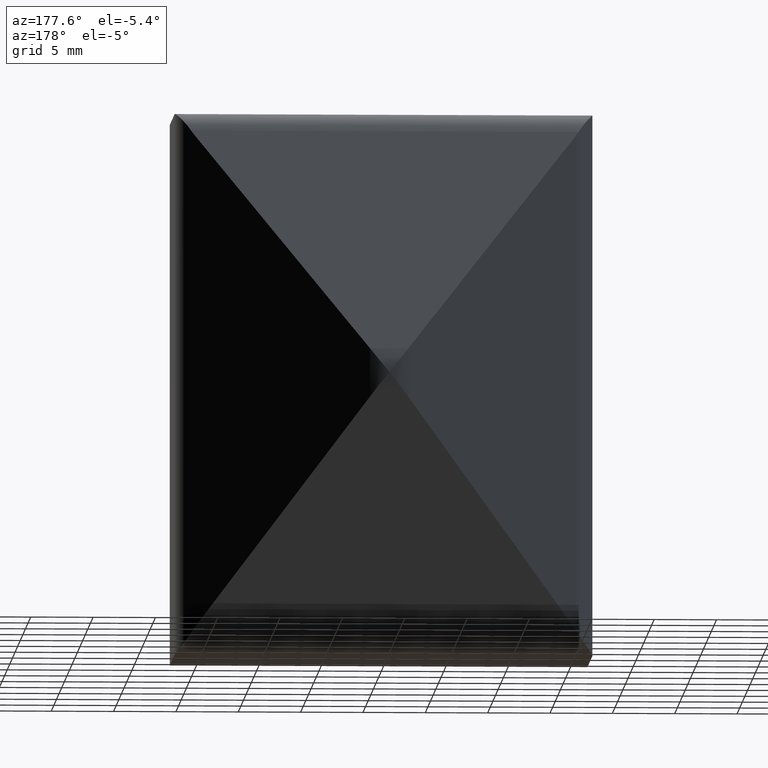
[diagram: clean part render]
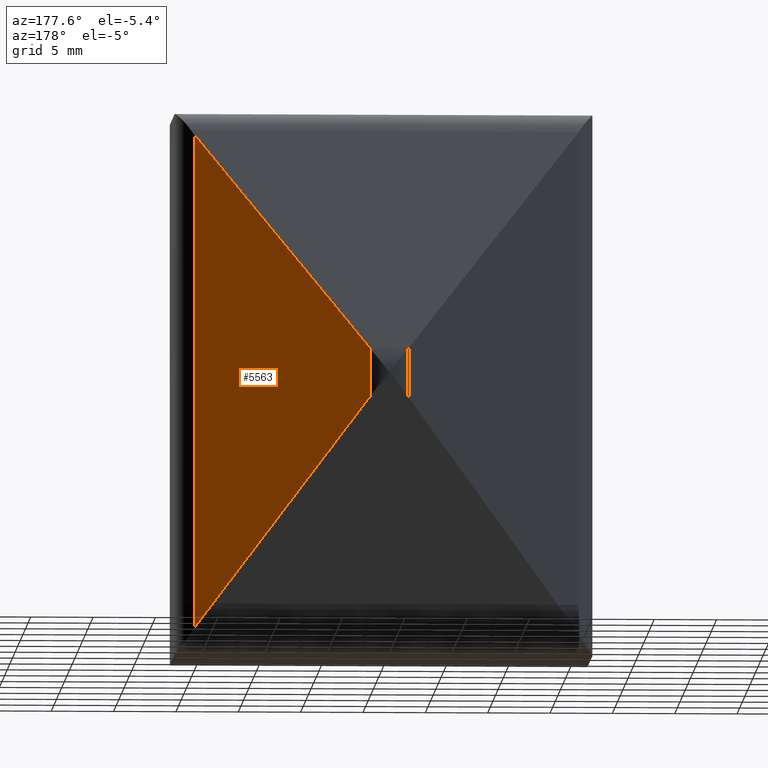
[diagram: same view with one face highlighted and labeled with its STEP entity id]
A machine part, auxiliary view. The second image highlights one B-rep face of the part: STEP entity #5563.
In plain terms, the highlighted planar face has unit normal (-0.5124, -0.8588, 0).
Its self-contained STEP definition (entity closure, byte-faithful):
#102 = VERTEX_POINT ( 'NONE', #15739 ) ;
#529 = ORIENTED_EDGE ( 'NONE', *, *, #7971, .T. ) ;
#867 = VECTOR ( 'NONE', #14172, 1000.000000000000000 ) ;
#1976 = VERTEX_POINT ( 'NONE', #14950 ) ;
#2716 = VECTOR ( 'NONE', #7102, 1000.000000000000227 ) ;
#3428 = DIRECTION ( 'NONE',  ( 0.8587713459437058550, -0.5123590297691997808, 0.000000000000000000 ) ) ;
#3666 = EDGE_LOOP ( 'NONE', ( #9308, #15238, #6369, #529 ) ) ;
#4314 = VECTOR ( 'NONE', #13838, 1000.000000000000000 ) ;
#4478 = DIRECTION ( 'NONE',  ( 0.5724733910802618508, -0.3415483208749185984, 0.7453985249600304508 ) ) ;
#4897 = CARTESIAN_POINT ( 'NONE',  ( 15.28707708930760845, 11.87280714091108358, -19.84517682961195106 ) ) ;
#4959 = VECTOR ( 'NONE', #4478, 1000.000000000000227 ) ;
#5418 = EDGE_CURVE ( 'NONE', #102, #1976, #8626, .T. ) ;
#5563 = ADVANCED_FACE ( 'NONE', ( #16193 ), #14043, .F. ) ;
#5568 = VERTEX_POINT ( 'NONE', #4897 ) ;
#6140 = VERTEX_POINT ( 'NONE', #14535 ) ;
#6185 = LINE ( 'NONE', #9863, #4314 ) ;
#6369 = ORIENTED_EDGE ( 'NONE', *, *, #6742, .T. ) ;
#6742 = EDGE_CURVE ( 'NONE', #102, #6140, #14704, .T. ) ;
#6802 = AXIS2_PLACEMENT_3D ( 'NONE', #15509, #14212, #3428 ) ;
#7102 = DIRECTION ( 'NONE',  ( 0.5724733910802618508, -0.3415483208749185984, -0.7453985249600304508 ) ) ;
#7971 = EDGE_CURVE ( 'NONE', #6140, #5568, #6185, .T. ) ;
#8626 = LINE ( 'NONE', #11563, #867 ) ;
#9308 = ORIENTED_EDGE ( 'NONE', *, *, #12039, .F. ) ;
#9863 = CARTESIAN_POINT ( 'NONE',  ( 15.28707708930760667, 11.87280714091108358, 21.75000000000000000 ) ) ;
#11563 = CARTESIAN_POINT ( 'NONE',  ( 1.537077089307608890, 20.07631403783112489, 21.75000000000000000 ) ) ;
#12039 = EDGE_CURVE ( 'NONE', #1976, #5568, #17281, .T. ) ;
#12580 = CARTESIAN_POINT ( 'NONE',  ( 9.989665510911098778, 15.03334186230743441, 12.94759374860315582 ) ) ;
#13838 = DIRECTION ( 'NONE',  ( -0.000000000000000000, -0.000000000000000000, -1.000000000000000000 ) ) ;
#14043 = PLANE ( 'NONE',  #6802 ) ;
#14172 = DIRECTION ( 'NONE',  ( -0.000000000000000000, -0.000000000000000000, -1.000000000000000000 ) ) ;
#14212 = DIRECTION ( 'NONE',  ( -0.5123590297691998918, -0.8587713459437059660, 0.000000000000000000 ) ) ;
#14535 = CARTESIAN_POINT ( 'NONE',  ( 15.28707708930760667, 11.87280714091108358, 19.84517682961194751 ) ) ;
#14704 = LINE ( 'NONE', #12580, #4959 ) ;
#14950 = CARTESIAN_POINT ( 'NONE',  ( 1.537077089307583355, 20.07631403783112845, -1.941760045715581251 ) ) ;
#15238 = ORIENTED_EDGE ( 'NONE', *, *, #5418, .F. ) ;
#15509 = CARTESIAN_POINT ( 'NONE',  ( 1.537077089307609112, 20.07631403783112134, 21.75000000000000000 ) ) ;
#15739 = CARTESIAN_POINT ( 'NONE',  ( 1.537077089307597344, 20.07631403783112845, 1.941760045715581251 ) ) ;
#16193 = FACE_OUTER_BOUND ( 'NONE', #3666, .T. ) ;
#16462 = CARTESIAN_POINT ( 'NONE',  ( -8.572690215207986242, 26.10799009665660364, 11.22183105544447024 ) ) ;
#17281 = LINE ( 'NONE', #16462, #2716 ) ;